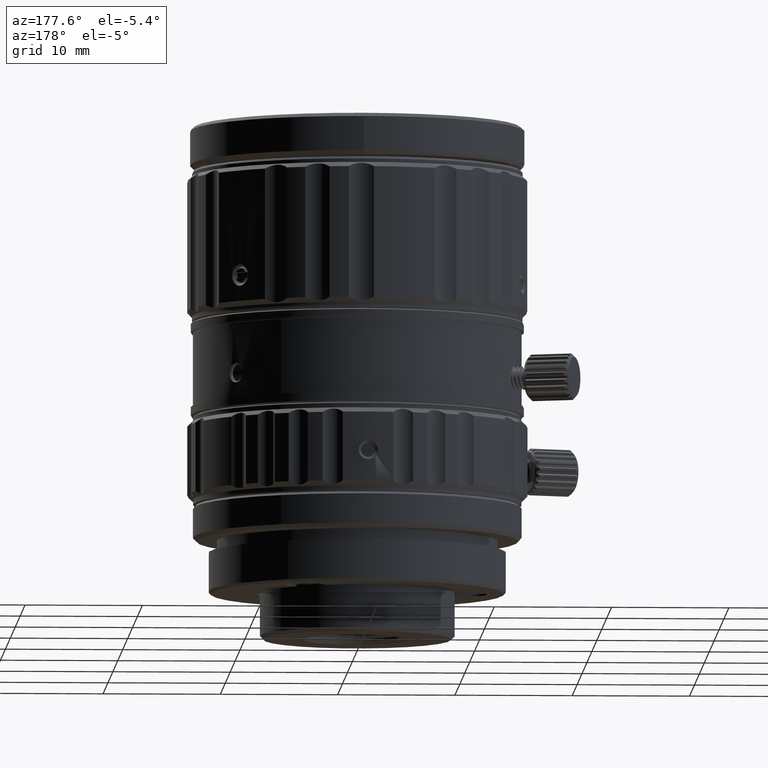
[diagram: clean part render]
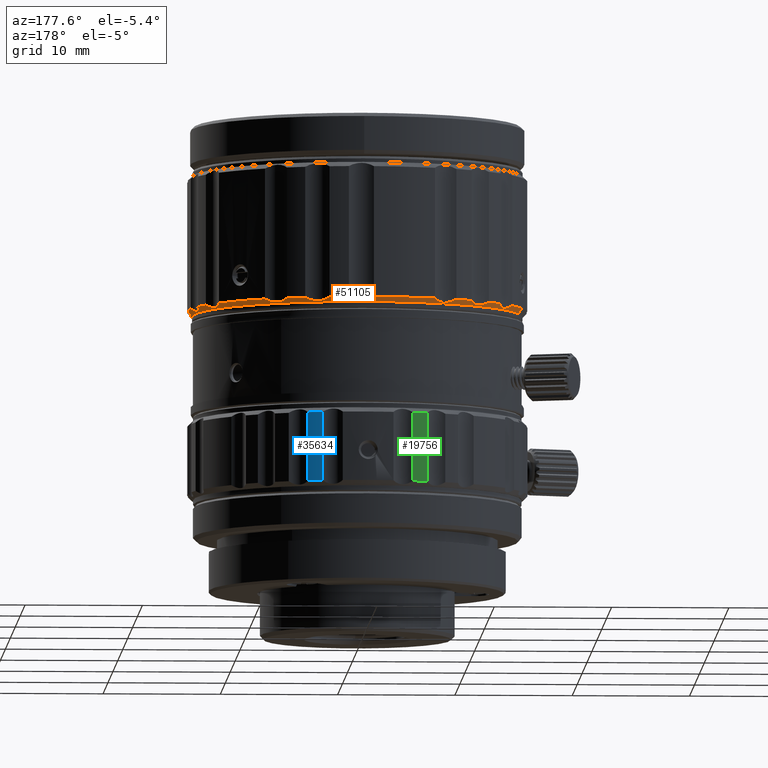
[diagram: same view with three faces highlighted in distinct colors, each labeled with its STEP entity id]
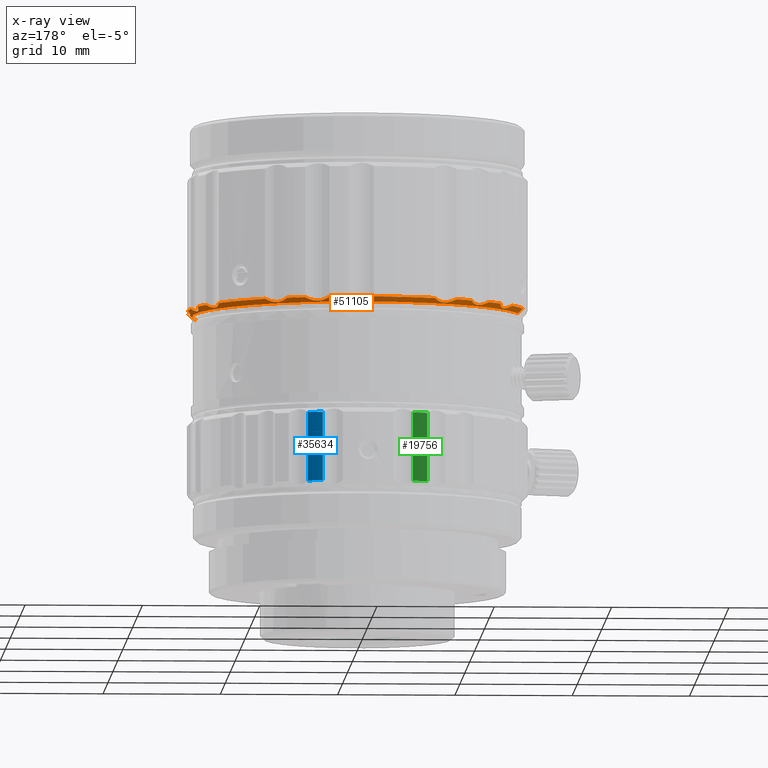
[diagram: x-ray of the same camera — body ghosted, the three highlighted faces saturated]
A machine part, auxiliary view with three faces highlighted in distinct colors.
The next image is the same camera in x-ray (body ghosted, the three faces saturated) — at least one of them is partly hidden behind the body in this view.
Their STEP definitions:

[orange] entity #51105 — the highlighted conical surface has half-angle 45 deg.
#53 = CARTESIAN_POINT ( 'NONE',  ( 12.13364787170920067, 7.874277762082280141, 15.16466047324910171 ) ) ;
#161 = VERTEX_POINT ( 'NONE', #30612 ) ;
#493 = CARTESIAN_POINT ( 'NONE',  ( 6.890869948791209509, 12.49470393294429904, 14.96854781947750013 ) ) ;
#770 = CARTESIAN_POINT ( 'NONE',  ( 7.165137924807210013, 12.26615800877429940, 14.90519358753840073 ) ) ;
#804 = CARTESIAN_POINT ( 'NONE',  ( 13.93829459076052402, -3.996741659247625034, 15.19999998125000040 ) ) ;
#843 = ORIENTED_EDGE ( 'NONE', *, *, #51717, .F. ) ;
#869 = CARTESIAN_POINT ( 'NONE',  ( 13.77598121087919836, 3.434962321787280004, 14.89740607222080016 ) ) ;
#875 = ORIENTED_EDGE ( 'NONE', *, *, #30436, .F. ) ;
#887 = CARTESIAN_POINT ( 'NONE',  ( 13.10762421778919951, 6.117182724668279725, 15.16466312319630028 ) ) ;
#1031 = VERTEX_POINT ( 'NONE', #43483 ) ;
#1050 = CARTESIAN_POINT ( 'NONE',  ( 7.974812044228209551, 11.90098984827429973, 15.02553577718150102 ) ) ;
#1103 = CARTESIAN_POINT ( 'NONE',  ( -0.6337340143753910082, 14.38727565356430027, 15.10087495407030111 ) ) ;
#1112 = ORIENTED_EDGE ( 'NONE', *, *, #14196, .F. ) ;
#1259 = VERTEX_POINT ( 'NONE', #29650 ) ;
#1333 = CARTESIAN_POINT ( 'NONE',  ( 6.644808071088210255, 12.77661321442429809, 15.10087495406510172 ) ) ;
#1381 = CARTESIAN_POINT ( 'NONE',  ( -0.1039023093025909922, 14.22877810675430155, 14.92879609105330019 ) ) ;
#1614 = CARTESIAN_POINT ( 'NONE',  ( 6.535887831521209890, 12.94342189120430042, 15.19999998124989915 ) ) ;
#1827 = VERTEX_POINT ( 'NONE', #42442 ) ;
#1844 = CIRCLE ( 'NONE', #53106, 14.50000000000000000 ) ;
#1854 = CARTESIAN_POINT ( 'NONE',  ( -10.44768126968079969, 9.801965028739278551, 15.02558370914860042 ) ) ;
#2111 = DIRECTION ( 'NONE',  ( 1.000000000000000000, 0.000000000000000000, 0.000000000000000000 ) ) ;
#2513 = VERTEX_POINT ( 'NONE', #18651 ) ;
#2596 = CARTESIAN_POINT ( 'NONE',  ( 3.913225973731209617, 13.64783085157429987, 14.89740607222710089 ) ) ;
#2943 = EDGE_CURVE ( 'NONE', #161, #1827, #34945, .T. ) ;
#3017 = CARTESIAN_POINT ( 'NONE',  ( 2.963178759953210228, 14.19399773272430032, 15.19999998125010165 ) ) ;
#3518 = EDGE_CURVE ( 'NONE', #31279, #52843, #33136, .T. ) ;
#3573 = CARTESIAN_POINT ( 'NONE',  ( 5.008754729101210224, 13.60743826235430021, 15.19999998125010165 ) ) ;
#3593 = CARTESIAN_POINT ( 'NONE',  ( 12.21502039629920056, 7.375296044303279785, 14.96854781947799928 ) ) ;
#4022 = B_SPLINE_CURVE_WITH_KNOTS ( 'NONE', 3,
 ( #38653, #52398, #13140, #30882, #8557, #48376, #12846, #51830, #35191, #4524, #52112, #34349, #26308, #12293, #39218 ),
 .UNSPECIFIED., .F., .F.,
 ( 4, 1, 1, 1, 1, 1, 1, 1, 1, 1, 1, 1, 4 ),
 ( 0.000000000000000000, 0.08333333333333001192, 0.1666666666667000196, 0.2500000000000000000, 0.3333333333333000081, 0.4166666666666999919, 0.5000000000000000000, 0.5833333333333000637, 0.6666666666667000474, 0.7500000000000000000, 0.8333333333333000637, 0.9166666666667000474, 1.000000000000000000 ),
 .UNSPECIFIED. ) ;
#4098 = EDGE_CURVE ( 'NONE', #15422, #12613, #27895, .T. ) ;
#4257 = CARTESIAN_POINT ( 'NONE',  ( 14.21644271443920182, -0.6001084886696159693, 14.92874179533080081 ) ) ;
#4263 = EDGE_CURVE ( 'NONE', #51720, #52863, #15133, .T. ) ;
#4332 = CARTESIAN_POINT ( 'NONE',  ( 14.28876458017920115, 2.466010294445279971, 15.19999998124959895 ) ) ;
#4382 = CARTESIAN_POINT ( 'NONE',  ( -7.742467582474789722, 12.14287920005430088, 15.10087495407160141 ) ) ;
#4524 = CARTESIAN_POINT ( 'NONE',  ( -12.37443445991079827, 7.024407014004280470, 14.92879609104689997 ) ) ;
#4796 = CARTESIAN_POINT ( 'NONE',  ( 8.359949727744210080, 11.84741493109429911, 15.19999998124989915 ) ) ;
#4809 = AXIS2_PLACEMENT_3D ( 'NONE', #46111, #50406, #33777 ) ;
#4901 = CARTESIAN_POINT ( 'NONE',  ( 13.82503590167919860, 3.265869035168280199, 14.90518205045920119 ) ) ;
#4945 = CARTESIAN_POINT ( 'NONE',  ( -6.883405121296790163, 12.41754236597429895, 14.89740607222960023 ) ) ;
#5048 = AXIS2_PLACEMENT_3D ( 'NONE', #31832, #49044, #36435 ) ;
#5217 = CARTESIAN_POINT ( 'NONE',  ( -7.040235480027790871, 12.33827046889430079, 14.90519358754320045 ) ) ;
#5378 = EDGE_CURVE ( 'NONE', #25103, #51720, #28106, .T. ) ;
#5388 = CARTESIAN_POINT ( 'NONE',  ( 0.4235953442322090146, 14.19922833192429934, 14.90518205046720013 ) ) ;
#5618 = ORIENTED_EDGE ( 'NONE', *, *, #7218, .F. ) ;
#5920 = ORIENTED_EDGE ( 'NONE', *, *, #39965, .F. ) ;
#6196 = CARTESIAN_POINT ( 'NONE',  ( -6.588512161007789913, 12.61185478648430092, 14.92874179533600021 ) ) ;
#6373 = CARTESIAN_POINT ( 'NONE',  ( 0.000000000000000000, 0.000000000000000000, 15.19999998125000040 ) ) ;
#6952 = DIRECTION ( 'NONE',  ( 0.000000000000000000, 0.000000000000000000, 1.000000000000000000 ) ) ;
#7183 = CARTESIAN_POINT ( 'NONE',  ( 3.582316838599210129, 13.77083614632429942, 14.92879609105120053 ) ) ;
#7190 = VERTEX_POINT ( 'NONE', #53690 ) ;
#7218 = EDGE_CURVE ( 'NONE', #35762, #28666, #31344, .T. ) ;
#7352 = VERTEX_POINT ( 'NONE', #38497 ) ;
#8445 = AXIS2_PLACEMENT_3D ( 'NONE', #43138, #50883, #21365 ) ;
#8557 = CARTESIAN_POINT ( 'NONE',  ( -11.95019798779079956, 7.797049333037279872, 14.96852953515110052 ) ) ;
#8773 = AXIS2_PLACEMENT_3D ( 'NONE', #55714, #47675, #34774 ) ;
#8841 = CARTESIAN_POINT ( 'NONE',  ( 14.20537340482919930, -0.07211246011522601251, 14.90519358753760137 ) ) ;
#9147 = CARTESIAN_POINT ( 'NONE',  ( 0.2475674834050089756, 14.19560970215430018, 14.89740607222910107 ) ) ;
#9197 = CARTESIAN_POINT ( 'NONE',  ( 14.24423614476920008, 2.516241994275280280, 15.16466312319539966 ) ) ;
#9387 = CARTESIAN_POINT ( 'NONE',  ( 7.312204580857210701, 12.16997488256429882, 14.89740607222490176 ) ) ;
#9392 = ORIENTED_EDGE ( 'NONE', *, *, #54084, .F. ) ;
#9409 = AXIS2_PLACEMENT_3D ( 'NONE', #45365, #14420, #2111 ) ;
#9421 = CONICAL_SURFACE ( 'NONE', #20387, 14.29999999999999716, 0.7853981625000003852 ) ;
#9471 = CARTESIAN_POINT ( 'NONE',  ( 13.74604225191793283, -3.941614188183171663, 14.99999998124999934 ) ) ;
#9660 = CARTESIAN_POINT ( 'NONE',  ( 7.627930553435209760, 12.01174629781429992, 14.92874179533179912 ) ) ;
#9777 = CARTESIAN_POINT ( 'NONE',  ( 12.33827046888920087, 7.040235480026280968, 14.90519358753879864 ) ) ;
#10402 = DIRECTION ( 'NONE',  ( 1.000000000000000000, 0.000000000000000000, 0.000000000000000000 ) ) ;
#10908 = CARTESIAN_POINT ( 'NONE',  ( 4.812485082409209802, 13.57333179277430091, 15.10087547233340111 ) ) ;
#11079 = CARTESIAN_POINT ( 'NONE',  ( 0.000000000000000000, 0.000000000000000000, 15.19999998125000040 ) ) ;
#11114 = ORIENTED_EDGE ( 'NONE', *, *, #56712, .F. ) ;
#11494 = CARTESIAN_POINT ( 'NONE',  ( 3.422201908373210255, 13.85244560074430176, 14.96854781947969926 ) ) ;
#11598 = CARTESIAN_POINT ( 'NONE',  ( -9.348607605323788761, 10.95440023308430000, 15.10087547232730110 ) ) ;
#11676 = CARTESIAN_POINT ( 'NONE',  ( 6.535887831521209890, 12.94342189120430042, 15.19999998124989915 ) ) ;
#12084 = ORIENTED_EDGE ( 'NONE', *, *, #54610, .F. ) ;
#12137 = CIRCLE ( 'NONE', #4809, 14.50000000000000000 ) ;
#12225 = ORIENTED_EDGE ( 'NONE', *, *, #29993, .F. ) ;
#12293 = CARTESIAN_POINT ( 'NONE',  ( -12.88614851427080055, 6.570908416430280674, 15.16466047324840005 ) ) ;
#12567 = CARTESIAN_POINT ( 'NONE',  ( -12.94342189121080011, 6.535887831519279878, 15.19999998125000040 ) ) ;
#12613 = VERTEX_POINT ( 'NONE', #52197 ) ;
#12846 = CARTESIAN_POINT ( 'NONE',  ( -12.08509477746079952, 7.466458494990280137, 14.90518205046010003 ) ) ;
#12940 = CARTESIAN_POINT ( 'NONE',  ( 13.88734868182920046, 3.099825840322280257, 14.92874179532810075 ) ) ;
#13124 = ORIENTED_EDGE ( 'NONE', *, *, #43257, .F. ) ;
#13140 = CARTESIAN_POINT ( 'NONE',  ( -11.86526893382080061, 8.161540403196280380, 15.10087547232710037 ) ) ;
#13148 = CARTESIAN_POINT ( 'NONE',  ( 14.19560970214920026, -0.2475674834055159867, 14.89740607222400115 ) ) ;
#13179 = CARTESIAN_POINT ( 'NONE',  ( 0.9558948965689089139, 14.29396556090429904, 15.02553577718420108 ) ) ;
#13244 = CARTESIAN_POINT ( 'NONE',  ( 12.13195584398919991, 7.941388253923280516, 15.19999998125030061 ) ) ;
#13812 = CARTESIAN_POINT ( 'NONE',  ( -7.941388253925790508, 12.13195584398430071, 15.19999998125030061 ) ) ;
#13954 = CARTESIAN_POINT ( 'NONE',  ( 7.797049333038209795, 11.95019798779430076, 14.96852953515439921 ) ) ;
#14039 = LINE ( 'NONE', #9471, #40132 ) ;
#14067 = CARTESIAN_POINT ( 'NONE',  ( 12.50869012169919969, 6.732769836928279794, 14.90518205046389966 ) ) ;
#14196 = EDGE_CURVE ( 'NONE', #28666, #44598, #21426, .T. ) ;
#14420 = DIRECTION ( 'NONE',  ( 0.000000000000000000, 0.000000000000000000, 1.000000000000000000 ) ) ;
#15133 = B_SPLINE_CURVE_WITH_KNOTS ( 'NONE', 3,
 ( #25227, #16082, #10908, #15495, #32964, #50758, #38429, #2596, #24952, #7183, #11494, #37872, #19800, #28674, #16359 ),
 .UNSPECIFIED., .F., .F.,
 ( 4, 1, 1, 1, 1, 1, 1, 1, 1, 1, 1, 1, 4 ),
 ( 0.000000000000000000, 0.08333333333333001192, 0.1666666666667000196, 0.2500000000000000000, 0.3333333333333000081, 0.4166666666666999919, 0.5000000000000000000, 0.5833333333333000637, 0.6666666666667000474, 0.7500000000000000000, 0.8333333333333000637, 0.9166666666667000474, 1.000000000000000000 ),
 .UNSPECIFIED. ) ;
#15377 = LINE ( 'NONE', #37753, #49578 ) ;
#15422 = VERTEX_POINT ( 'NONE', #26810 ) ;
#15495 = CARTESIAN_POINT ( 'NONE',  ( 4.622874085016209555, 13.55950669101430073, 15.02553577718339994 ) ) ;
#15764 = DIRECTION ( 'NONE',  ( -0.9612616959425918095, 0.2756373558020978609, 0.000000000000000000 ) ) ;
#15960 = ORIENTED_EDGE ( 'NONE', *, *, #31402, .F. ) ;
#16022 = DIRECTION ( 'NONE',  ( 0.000000000000000000, 0.000000000000000000, 1.000000000000000000 ) ) ;
#16082 = CARTESIAN_POINT ( 'NONE',  ( 4.942988583270209624, 13.59399135601429975, 15.16466312319619902 ) ) ;
#16359 = CARTESIAN_POINT ( 'NONE',  ( 2.963178759953210228, 14.19399773272430032, 15.19999998125010165 ) ) ;
#16588 = CARTESIAN_POINT ( 'NONE',  ( 14.31866221424919949, 0.4565903326921840200, 15.02558370915149943 ) ) ;
#17245 = CARTESIAN_POINT ( 'NONE',  ( 13.70767074896920157, 3.962509010843280777, 14.96854781947399893 ) ) ;
#17705 = CARTESIAN_POINT ( 'NONE',  ( 0.000000000000000000, 0.000000000000000000, 15.19999998125000040 ) ) ;
#17757 = CARTESIAN_POINT ( 'NONE',  ( 1.316221373036210007, 14.44013716337430075, 15.19999998124970020 ) ) ;
#17849 = CARTESIAN_POINT ( 'NONE',  ( -7.204371092744789706, 12.27053215061429903, 14.92879609105379934 ) ) ;
#17976 = DIRECTION ( 'NONE',  ( 0.000000000000000000, 0.000000000000000000, 1.000000000000000000 ) ) ;
#18027 = CARTESIAN_POINT ( 'NONE',  ( 1.256176469740210022, 14.41012691819429925, 15.16466312319609955 ) ) ;
#18072 = CARTESIAN_POINT ( 'NONE',  ( 13.71705235335920037, 3.783040686532280095, 14.92879609104529948 ) ) ;
#18651 = CARTESIAN_POINT ( 'NONE',  ( -13.55378991279054901, 3.886486716809581576, 14.79999998125000005 ) ) ;
#19335 = CARTESIAN_POINT ( 'NONE',  ( -10.62145779647079991, 9.725222558394280625, 15.10087495406209968 ) ) ;
#19645 = CARTESIAN_POINT ( 'NONE',  ( -11.84741493110079880, 8.359949727741280867, 15.19999998124989915 ) ) ;
#19800 = CARTESIAN_POINT ( 'NONE',  ( 3.111560894797209986, 14.06106355616430115, 15.10087495406830094 ) ) ;
#20125 = EDGE_CURVE ( 'NONE', #2513, #7190, #15377, .T. ) ;
#20160 = VERTEX_POINT ( 'NONE', #35606 ) ;
#20387 = AXIS2_PLACEMENT_3D ( 'NONE', #22160, #43934, #27002 ) ;
#20488 = CARTESIAN_POINT ( 'NONE',  ( -9.740843500726791504, 10.33989778150430006, 14.90518205045929889 ) ) ;
#20788 = CIRCLE ( 'NONE', #28997, 14.50000000000000000 ) ;
#21282 = B_SPLINE_CURVE_WITH_KNOTS ( 'NONE', 3,
 ( #55159, #50003, #11598, #29064, #24770, #42279, #20488, #23626, #37973, #55436, #41117, #1854, #19335, #55722, #39368 ),
 .UNSPECIFIED., .F., .F.,
 ( 4, 1, 1, 1, 1, 1, 1, 1, 1, 1, 1, 1, 4 ),
 ( 0.000000000000000000, 0.08333333333333001192, 0.1666666666667000196, 0.2500000000000000000, 0.3333333333333000081, 0.4166666666666999919, 0.5000000000000000000, 0.5833333333333000637, 0.6666666666667000474, 0.7500000000000000000, 0.8333333333333000637, 0.9166666666667000474, 1.000000000000000000 ),
 .UNSPECIFIED. ) ;
#21316 = CARTESIAN_POINT ( 'NONE',  ( -6.319153516672789905, 12.85688474484429911, 15.02553577718479971 ) ) ;
#21365 = DIRECTION ( 'NONE',  ( 1.000000000000000000, 0.000000000000000000, 0.000000000000000000 ) ) ;
#21426 = B_SPLINE_CURVE_WITH_KNOTS ( 'NONE', 3,
 ( #46979, #38378, #38949, #51839, #26038, #4257, #34914, #13148, #8841, #26316, #21744, #16588, #39499, #39227, #56703 ),
 .UNSPECIFIED., .F., .F.,
 ( 4, 1, 1, 1, 1, 1, 1, 1, 1, 1, 1, 1, 4 ),
 ( 0.000000000000000000, 0.08333333333333001192, 0.1666666666667000196, 0.2500000000000000000, 0.3333333333333000081, 0.4166666666666999919, 0.5000000000000000000, 0.5833333333333000637, 0.6666666666667000474, 0.7500000000000000000, 0.8333333333333000637, 0.9166666666667000474, 1.000000000000000000 ),
 .UNSPECIFIED. ) ;
#21744 = CARTESIAN_POINT ( 'NONE',  ( 14.26616599308920108, 0.2796835366482839924, 14.96854781947729940 ) ) ;
#22146 = CARTESIAN_POINT ( 'NONE',  ( -7.554749934355790231, 12.17203005940429961, 15.02558370915559927 ) ) ;
#22160 = CARTESIAN_POINT ( 'NONE',  ( 0.000000000000000000, 0.000000000000000000, 14.99999998124999934 ) ) ;
#22335 = EDGE_CURVE ( 'NONE', #37554, #15422, #26118, .T. ) ;
#22362 = ORIENTED_EDGE ( 'NONE', *, *, #27067, .F. ) ;
#22377 = CARTESIAN_POINT ( 'NONE',  ( 13.73301869125919872, 4.335840997771279959, 15.10087495406290081 ) ) ;
#22542 = CARTESIAN_POINT ( 'NONE',  ( 7.024407014008210659, 12.37443445990429858, 14.92879609104899963 ) ) ;
#22642 = CARTESIAN_POINT ( 'NONE',  ( 14.16109268773919894, 2.618931559679280152, 15.10087547232819993 ) ) ;
#22694 = CARTESIAN_POINT ( 'NONE',  ( -7.375296044302789511, 12.21502039630430048, 14.96854781948229984 ) ) ;
#22865 = CARTESIAN_POINT ( 'NONE',  ( -0.2796835366449910154, 14.26616599309430100, 14.96854781948159996 ) ) ;
#23234 = CARTESIAN_POINT ( 'NONE',  ( 13.55378991273027367, -3.886486717019769888, 14.79999998125000005 ) ) ;
#23392 = CARTESIAN_POINT ( 'NONE',  ( 7.466458494993210238, 12.08509477746430072, 14.90518205046329925 ) ) ;
#23626 = CARTESIAN_POINT ( 'NONE',  ( -9.862755237147789344, 10.21286852978430026, 14.89740607222090141 ) ) ;
#24770 = CARTESIAN_POINT ( 'NONE',  ( -9.524980002677791546, 10.62431015161430103, 14.96852953515080031 ) ) ;
#24886 = ORIENTED_EDGE ( 'NONE', *, *, #3518, .F. ) ;
#24952 = CARTESIAN_POINT ( 'NONE',  ( 3.746276467588210313, 13.70267296574430027, 14.90519358754059986 ) ) ;
#25103 = VERTEX_POINT ( 'NONE', #11676 ) ;
#25227 = CARTESIAN_POINT ( 'NONE',  ( 5.008754729101210224, 13.60743826235430021, 15.19999998125010165 ) ) ;
#25323 = CIRCLE ( 'NONE', #32631, 14.50000000000000000 ) ;
#25349 = CARTESIAN_POINT ( 'NONE',  ( 12.72754179086919990, 6.450650371162280017, 14.96852953515560003 ) ) ;
#25640 = B_SPLINE_CURVE_WITH_KNOTS ( 'NONE', 3,
 ( #4332, #9197, #22642, #44165, #56501, #12940, #4901, #869, #47905, #18072, #17245, #48737, #22377, #35553, #53028 ),
 .UNSPECIFIED., .F., .F.,
 ( 4, 1, 1, 1, 1, 1, 1, 1, 1, 1, 1, 1, 4 ),
 ( 0.000000000000000000, 0.08333333333333001192, 0.1666666666667000196, 0.2500000000000000000, 0.3333333333333000081, 0.4166666666666999919, 0.5000000000000000000, 0.5833333333333000637, 0.6666666666667000474, 0.7500000000000000000, 0.8333333333333000637, 0.9166666666667000474, 1.000000000000000000 ),
 .UNSPECIFIED. ) ;
#26038 = CARTESIAN_POINT ( 'NONE',  ( 14.24769970419919929, -0.7773438030752160000, 14.96852953515349860 ) ) ;
#26118 = B_SPLINE_CURVE_WITH_KNOTS ( 'NONE', 3,
 ( #47148, #887, #35298, #52782, #25349, #42859, #14067, #31546, #9777, #44724, #3593, #40434, #39319, #53, #13244 ),
 .UNSPECIFIED., .F., .F.,
 ( 4, 1, 1, 1, 1, 1, 1, 1, 1, 1, 1, 1, 4 ),
 ( 0.000000000000000000, 0.08333333333333001192, 0.1666666666667000196, 0.2500000000000000000, 0.3333333333333000081, 0.4166666666666999919, 0.5000000000000000000, 0.5833333333333000637, 0.6666666666667000474, 0.7500000000000000000, 0.8333333333333000637, 0.9166666666667000474, 1.000000000000000000 ),
 .UNSPECIFIED. ) ;
#26308 = CARTESIAN_POINT ( 'NONE',  ( -12.77661321443079956, 6.644808071083279977, 15.10087495406579983 ) ) ;
#26316 = CARTESIAN_POINT ( 'NONE',  ( 14.22877810674919985, 0.1039023093041839957, 14.92879609104850047 ) ) ;
#26810 = CARTESIAN_POINT ( 'NONE',  ( 12.13195584398919991, 7.941388253923280516, 15.19999998125030061 ) ) ;
#26853 = CARTESIAN_POINT ( 'NONE',  ( 6.570908416432209798, 12.88614851427429997, 15.16466047324870026 ) ) ;
#26935 = DIRECTION ( 'NONE',  ( 0.6797146630828566627, -0.1949050432716163961, 0.7071067818211390632 ) ) ;
#27002 = DIRECTION ( 'NONE',  ( 0.9612616959383171178, -0.2756373558170050475, 0.000000000000000000 ) ) ;
#27067 = EDGE_CURVE ( 'NONE', #52863, #161, #1844, .T. ) ;
#27895 = CIRCLE ( 'NONE', #5048, 14.50000000000000000 ) ;
#27964 = ORIENTED_EDGE ( 'NONE', *, *, #22335, .F. ) ;
#28106 = CIRCLE ( 'NONE', #56502, 14.50000000000000000 ) ;
#28314 = CARTESIAN_POINT ( 'NONE',  ( 0.000000000000000000, 0.000000000000000000, 15.19999998125000040 ) ) ;
#28319 = CARTESIAN_POINT ( 'NONE',  ( 0.000000000000000000, 0.000000000000000000, 15.19999998125000040 ) ) ;
#28371 = CARTESIAN_POINT ( 'NONE',  ( 0.000000000000000000, 0.000000000000000000, 15.19999998125000040 ) ) ;
#28666 = VERTEX_POINT ( 'NONE', #35572 ) ;
#28674 = CARTESIAN_POINT ( 'NONE',  ( 3.011829488098209939, 14.14773989313430036, 15.16466047324889921 ) ) ;
#28823 = CARTESIAN_POINT ( 'NONE',  ( -6.080187435637789406, 13.16363630413430030, 15.19999998125030061 ) ) ;
#28922 = DIRECTION ( 'NONE',  ( 0.000000000000000000, 0.000000000000000000, -1.000000000000000000 ) ) ;
#28997 = AXIS2_PLACEMENT_3D ( 'NONE', #17705, #17976, #35180 ) ;
#29064 = CARTESIAN_POINT ( 'NONE',  ( -9.431440214685789414, 10.78327974162430003, 15.02553577717870148 ) ) ;
#29650 = CARTESIAN_POINT ( 'NONE',  ( -9.280009851068788507, 11.14142796790430090, 15.19999998124959895 ) ) ;
#29993 = EDGE_CURVE ( 'NONE', #44598, #7352, #43839, .T. ) ;
#30000 = EDGE_CURVE ( 'NONE', #52843, #46002, #4022, .T. ) ;
#30436 = EDGE_CURVE ( 'NONE', #31610, #20160, #50382, .T. ) ;
#30612 = CARTESIAN_POINT ( 'NONE',  ( 1.316221373036210007, 14.44013716337430075, 15.19999998124970020 ) ) ;
#30882 = CARTESIAN_POINT ( 'NONE',  ( -11.90098984827080209, 7.974812044228278829, 15.02553577717890043 ) ) ;
#30920 = CARTESIAN_POINT ( 'NONE',  ( 0.7773438030719089786, 14.24769970420429921, 14.96852953515779916 ) ) ;
#30927 = EDGE_CURVE ( 'NONE', #46002, #7190, #53544, .T. ) ;
#31279 = VERTEX_POINT ( 'NONE', #41108 ) ;
#31344 = CIRCLE ( 'NONE', #9409, 14.50000000000000000 ) ;
#31402 = EDGE_CURVE ( 'NONE', #20160, #1259, #48123, .T. ) ;
#31546 = CARTESIAN_POINT ( 'NONE',  ( 12.41754236597919991, 6.883405121294280171, 14.89740607222540092 ) ) ;
#31610 = VERTEX_POINT ( 'NONE', #43755 ) ;
#31832 = CARTESIAN_POINT ( 'NONE',  ( 0.000000000000000000, 0.000000000000000000, 15.19999998125000040 ) ) ;
#31954 = ORIENTED_EDGE ( 'NONE', *, *, #52436, .F. ) ;
#32030 = ORIENTED_EDGE ( 'NONE', *, *, #30927, .F. ) ;
#32631 = AXIS2_PLACEMENT_3D ( 'NONE', #28371, #37003, #45864 ) ;
#32964 = CARTESIAN_POINT ( 'NONE',  ( 4.438432487644210056, 13.56102972867430090, 14.96852953515639939 ) ) ;
#33136 = CIRCLE ( 'NONE', #8445, 14.50000000000000000 ) ;
#33521 = ORIENTED_EDGE ( 'NONE', *, *, #20125, .T. ) ;
#33777 = DIRECTION ( 'NONE',  ( 1.000000000000000000, 0.000000000000000000, 0.000000000000000000 ) ) ;
#34349 = CARTESIAN_POINT ( 'NONE',  ( -12.62862039209079867, 6.763912279887280832, 15.02558370915049935 ) ) ;
#34774 = DIRECTION ( 'NONE',  ( 1.000000000000000000, 0.000000000000000000, 0.000000000000000000 ) ) ;
#34914 = CARTESIAN_POINT ( 'NONE',  ( 14.19922833191919942, -0.4235953442339160380, 14.90518205046230094 ) ) ;
#34945 = B_SPLINE_CURVE_WITH_KNOTS ( 'NONE', 3,
 ( #17757, #18027, #34956, #13179, #30920, #48413, #5388, #9147, #43833, #1381, #22865, #52444, #1103, #44927, #44117 ),
 .UNSPECIFIED., .F., .F.,
 ( 4, 1, 1, 1, 1, 1, 1, 1, 1, 1, 1, 1, 4 ),
 ( 0.000000000000000000, 0.08333333333333001192, 0.1666666666667000196, 0.2500000000000000000, 0.3333333333333000081, 0.4166666666666999919, 0.5000000000000000000, 0.5833333333333000637, 0.6666666666667000474, 0.7500000000000000000, 0.8333333333333000637, 0.9166666666667000474, 1.000000000000000000 ),
 .UNSPECIFIED. ) ;
#34956 = CARTESIAN_POINT ( 'NONE',  ( 1.135466856260209934, 14.35639452102429914, 15.10087547233399974 ) ) ;
#35180 = DIRECTION ( 'NONE',  ( 1.000000000000000000, 0.000000000000000000, 0.000000000000000000 ) ) ;
#35191 = CARTESIAN_POINT ( 'NONE',  ( -12.26615800877079998, 7.165137924804279912, 14.90519358753580015 ) ) ;
#35275 = CARTESIAN_POINT ( 'NONE',  ( 14.47727608544920130, 0.8114660472209840325, 15.19999998124989915 ) ) ;
#35298 = CARTESIAN_POINT ( 'NONE',  ( 13.00073579009920088, 6.194854117829279971, 15.10087547233369953 ) ) ;
#35553 = CARTESIAN_POINT ( 'NONE',  ( 13.75821689762919853, 4.465549098011279305, 15.16466047324809985 ) ) ;
#35572 = CARTESIAN_POINT ( 'NONE',  ( 14.44013716337919995, -1.316221373035719955, 15.19999998124970020 ) ) ;
#35606 = CARTESIAN_POINT ( 'NONE',  ( -7.941388253925790508, 12.13195584398430071, 15.19999998125030061 ) ) ;
#35762 = VERTEX_POINT ( 'NONE', #804 ) ;
#36022 = CARTESIAN_POINT ( 'NONE',  ( 6.763912279891210133, 12.62862039208429898, 15.02558370915139996 ) ) ;
#36160 = AXIS2_PLACEMENT_3D ( 'NONE', #11079, #54924, #46621 ) ;
#36435 = DIRECTION ( 'NONE',  ( 1.000000000000000000, 0.000000000000000000, 0.000000000000000000 ) ) ;
#36725 = VERTEX_POINT ( 'NONE', #23234 ) ;
#37003 = DIRECTION ( 'NONE',  ( 0.000000000000000000, 0.000000000000000000, 1.000000000000000000 ) ) ;
#37554 = VERTEX_POINT ( 'NONE', #39631 ) ;
#37753 = CARTESIAN_POINT ( 'NONE',  ( -13.74604225191793283, 3.941614188183173439, 14.99999998124999934 ) ) ;
#37872 = CARTESIAN_POINT ( 'NONE',  ( 3.264910087057209864, 13.94893990456430011, 15.02558370915340014 ) ) ;
#37973 = CARTESIAN_POINT ( 'NONE',  ( -9.993724654284790176, 10.09570707339429951, 14.90519358753440038 ) ) ;
#38362 = ORIENTED_EDGE ( 'NONE', *, *, #42408, .F. ) ;
#38378 = CARTESIAN_POINT ( 'NONE',  ( 14.41012691819920022, -1.256176469739719970, 15.16466312319579934 ) ) ;
#38429 = CARTESIAN_POINT ( 'NONE',  ( 4.084192400952209034, 13.60576681667429888, 14.90518205046540068 ) ) ;
#38497 = CARTESIAN_POINT ( 'NONE',  ( 14.28876458017920115, 2.466010294445279971, 15.19999998124959895 ) ) ;
#38653 = CARTESIAN_POINT ( 'NONE',  ( -11.84741493110079880, 8.359949727741280867, 15.19999998124989915 ) ) ;
#38800 = CARTESIAN_POINT ( 'NONE',  ( -6.450650371166789299, 12.72754179087429982, 14.96852953515829832 ) ) ;
#38949 = CARTESIAN_POINT ( 'NONE',  ( 14.35639452102919833, -1.135466856267720148, 15.10087547233020011 ) ) ;
#39218 = CARTESIAN_POINT ( 'NONE',  ( -12.94342189121080011, 6.535887831519279878, 15.19999998125000040 ) ) ;
#39227 = CARTESIAN_POINT ( 'NONE',  ( 14.44518617851919906, 0.7525006425657838616, 15.16466047324860078 ) ) ;
#39319 = CARTESIAN_POINT ( 'NONE',  ( 12.14287920004919918, 7.742467582478279375, 15.10087495406640024 ) ) ;
#39368 = CARTESIAN_POINT ( 'NONE',  ( -10.81077323782079880, 9.663186948433279966, 15.19999998124959895 ) ) ;
#39397 = EDGE_LOOP ( 'NONE', ( #31954, #33521, #32030, #39482, #24886, #843, #15960, #875, #13124, #44954, #22362, #52095, #49710, #38362, #50265, #27964, #9392, #12084, #5920, #12225, #1112, #5618, #11114 ) ) ;
#39482 = ORIENTED_EDGE ( 'NONE', *, *, #30000, .F. ) ;
#39499 = CARTESIAN_POINT ( 'NONE',  ( 14.38727565355920035, 0.6337340143822840499, 15.10087495406640024 ) ) ;
#39631 = CARTESIAN_POINT ( 'NONE',  ( 13.16363630413919950, 6.080187435636279503, 15.19999998125030061 ) ) ;
#39965 = EDGE_CURVE ( 'NONE', #7352, #1031, #25640, .T. ) ;
#40132 = VECTOR ( 'NONE', #26935, 1000.000000000000000 ) ;
#40434 = CARTESIAN_POINT ( 'NONE',  ( 12.17203005939919969, 7.554749934355280416, 15.02558370915200037 ) ) ;
#40606 = CARTESIAN_POINT ( 'NONE',  ( 8.292944193532209241, 11.85144774804429879, 15.16466312319609955 ) ) ;
#41108 = CARTESIAN_POINT ( 'NONE',  ( -10.81077323782079880, 9.663186948433279966, 15.19999998124959895 ) ) ;
#41117 = CARTESIAN_POINT ( 'NONE',  ( -10.28546884060080124, 9.889936589896279884, 14.96854781947399893 ) ) ;
#41539 = DIRECTION ( 'NONE',  ( 1.000000000000000000, 0.000000000000000000, 0.000000000000000000 ) ) ;
#41761 = DIRECTION ( 'NONE',  ( -0.6797146630828566627, 0.1949050432716164516, 0.7071067818211390632 ) ) ;
#42279 = CARTESIAN_POINT ( 'NONE',  ( -9.628202265939789228, 10.47688382951429986, 14.92874179532799950 ) ) ;
#42408 = EDGE_CURVE ( 'NONE', #12613, #25103, #44003, .T. ) ;
#42442 = CARTESIAN_POINT ( 'NONE',  ( -0.8114660472211909781, 14.47727608544430034, 15.19999998124989915 ) ) ;
#42859 = CARTESIAN_POINT ( 'NONE',  ( 12.61185478648920011, 6.588512161004279832, 14.92874179533269974 ) ) ;
#43138 = CARTESIAN_POINT ( 'NONE',  ( 0.000000000000000000, 0.000000000000000000, 15.19999998125000040 ) ) ;
#43257 = EDGE_CURVE ( 'NONE', #1827, #31610, #12137, .T. ) ;
#43483 = CARTESIAN_POINT ( 'NONE',  ( 13.77395199776920087, 4.530810784294279969, 15.19999998124959895 ) ) ;
#43755 = CARTESIAN_POINT ( 'NONE',  ( -6.080187435637789406, 13.16363630413430030, 15.19999998125030061 ) ) ;
#43833 = CARTESIAN_POINT ( 'NONE',  ( 0.07211246011610900064, 14.20537340483429922, 14.90519358754270129 ) ) ;
#43839 = CIRCLE ( 'NONE', #51155, 14.50000000000000000 ) ;
#43934 = DIRECTION ( 'NONE',  ( -1.150809682885772011E-17, 3.299893664540600058E-18, 1.000000000000000000 ) ) ;
#44003 = B_SPLINE_CURVE_WITH_KNOTS ( 'NONE', 3,
 ( #4796, #40606, #44879, #1050, #13954, #9660, #23392, #9387, #770, #22542, #493, #36022, #1333, #26853, #1614 ),
 .UNSPECIFIED., .F., .F.,
 ( 4, 1, 1, 1, 1, 1, 1, 1, 1, 1, 1, 1, 4 ),
 ( 0.000000000000000000, 0.08333333333333001192, 0.1666666666667000196, 0.2500000000000000000, 0.3333333333333000081, 0.4166666666666999919, 0.5000000000000000000, 0.5833333333333000637, 0.6666666666667000474, 0.7500000000000000000, 0.8333333333333000637, 0.9166666666667000474, 1.000000000000000000 ),
 .UNSPECIFIED. ) ;
#44117 = CARTESIAN_POINT ( 'NONE',  ( -0.8114660472211909781, 14.47727608544430034, 15.19999998124989915 ) ) ;
#44165 = CARTESIAN_POINT ( 'NONE',  ( 14.05431429969920032, 2.776226949380280029, 15.02553577717890043 ) ) ;
#44216 = CARTESIAN_POINT ( 'NONE',  ( -6.732769836930789786, 12.50869012169430050, 14.90518205046770106 ) ) ;
#44481 = CARTESIAN_POINT ( 'NONE',  ( -7.874277762084790133, 12.13364787170429970, 15.16466047324919941 ) ) ;
#44494 = FACE_OUTER_BOUND ( 'NONE', #39397, .T. ) ;
#44598 = VERTEX_POINT ( 'NONE', #35275 ) ;
#44724 = CARTESIAN_POINT ( 'NONE',  ( 12.27053215060919911, 7.204371092743280691, 14.92879609104939931 ) ) ;
#44817 = CIRCLE ( 'NONE', #52168, 14.10000000000000497 ) ;
#44879 = CARTESIAN_POINT ( 'NONE',  ( 8.161540403194210924, 11.86526893382430003, 15.10087547233100125 ) ) ;
#44927 = CARTESIAN_POINT ( 'NONE',  ( -0.7525006425662910114, 14.44518617851430164, 15.16466047324889921 ) ) ;
#44954 = ORIENTED_EDGE ( 'NONE', *, *, #2943, .F. ) ;
#45365 = CARTESIAN_POINT ( 'NONE',  ( 0.000000000000000000, 0.000000000000000000, 15.19999998125000040 ) ) ;
#45454 = CARTESIAN_POINT ( 'NONE',  ( -6.117182724668789540, 13.10762421778429854, 15.16466312319659870 ) ) ;
#45810 = DIRECTION ( 'NONE',  ( 0.000000000000000000, 0.000000000000000000, 1.000000000000000000 ) ) ;
#45864 = DIRECTION ( 'NONE',  ( 1.000000000000000000, 0.000000000000000000, 0.000000000000000000 ) ) ;
#46002 = VERTEX_POINT ( 'NONE', #12567 ) ;
#46111 = CARTESIAN_POINT ( 'NONE',  ( 0.000000000000000000, 0.000000000000000000, 15.19999998125000040 ) ) ;
#46323 = CARTESIAN_POINT ( 'NONE',  ( -6.194854117834790230, 13.00073579009429992, 15.10087547233470140 ) ) ;
#46423 = CARTESIAN_POINT ( 'NONE',  ( 0.000000000000000000, 0.000000000000000000, 14.79999998125000005 ) ) ;
#46621 = DIRECTION ( 'NONE',  ( 1.000000000000000000, 0.000000000000000000, 0.000000000000000000 ) ) ;
#46979 = CARTESIAN_POINT ( 'NONE',  ( 14.44013716337919995, -1.316221373035719955, 15.19999998124970020 ) ) ;
#47148 = CARTESIAN_POINT ( 'NONE',  ( 13.16363630413919950, 6.080187435636279503, 15.19999998125030061 ) ) ;
#47675 = DIRECTION ( 'NONE',  ( 0.000000000000000000, 0.000000000000000000, 1.000000000000000000 ) ) ;
#47828 = CARTESIAN_POINT ( 'NONE',  ( 13.68511379795702609, 4.792458694341168446, 15.19999998125000040 ) ) ;
#47905 = CARTESIAN_POINT ( 'NONE',  ( 13.74000112186919864, 3.606965892340280089, 14.90519358753440038 ) ) ;
#48123 = CIRCLE ( 'NONE', #8773, 14.50000000000000000 ) ;
#48376 = CARTESIAN_POINT ( 'NONE',  ( -12.01174629781080050, 7.627930553433279748, 14.92874179532859991 ) ) ;
#48413 = CARTESIAN_POINT ( 'NONE',  ( 0.6001084886673090368, 14.21644271444430174, 14.92874179533549928 ) ) ;
#48422 = VERTEX_POINT ( 'NONE', #47828 ) ;
#48737 = CARTESIAN_POINT ( 'NONE',  ( 13.71259135673919793, 4.146974875819280371, 15.02558370914869812 ) ) ;
#49044 = DIRECTION ( 'NONE',  ( 0.000000000000000000, 0.000000000000000000, 1.000000000000000000 ) ) ;
#49578 = VECTOR ( 'NONE', #41761, 1000.000000000000000 ) ;
#49710 = ORIENTED_EDGE ( 'NONE', *, *, #5378, .F. ) ;
#50003 = CARTESIAN_POINT ( 'NONE',  ( -9.301247561492790084, 11.07774936173430014, 15.16466312319549914 ) ) ;
#50265 = ORIENTED_EDGE ( 'NONE', *, *, #4098, .F. ) ;
#50382 = B_SPLINE_CURVE_WITH_KNOTS ( 'NONE', 3,
 ( #28823, #45454, #46323, #21316, #38800, #6196, #44216, #4945, #5217, #17849, #22694, #22146, #4382, #44481, #13812 ),
 .UNSPECIFIED., .F., .F.,
 ( 4, 1, 1, 1, 1, 1, 1, 1, 1, 1, 1, 1, 4 ),
 ( 0.000000000000000000, 0.08333333333333001192, 0.1666666666667000196, 0.2500000000000000000, 0.3333333333333000081, 0.4166666666666999919, 0.5000000000000000000, 0.5833333333333000637, 0.6666666666667000474, 0.7500000000000000000, 0.8333333333333000637, 0.9166666666667000474, 1.000000000000000000 ),
 .UNSPECIFIED. ) ;
#50406 = DIRECTION ( 'NONE',  ( 0.000000000000000000, 0.000000000000000000, 1.000000000000000000 ) ) ;
#50758 = CARTESIAN_POINT ( 'NONE',  ( 4.259146415887210324, 13.57670966984430017, 14.92874179533390055 ) ) ;
#50883 = DIRECTION ( 'NONE',  ( 0.000000000000000000, 0.000000000000000000, 1.000000000000000000 ) ) ;
#50973 = DIRECTION ( 'NONE',  ( 1.000000000000000000, 0.000000000000000000, 0.000000000000000000 ) ) ;
#51105 = ADVANCED_FACE ( 'NONE', ( #44494 ), #9421, .T. ) ;
#51155 = AXIS2_PLACEMENT_3D ( 'NONE', #28314, #16022, #50973 ) ;
#51717 = EDGE_CURVE ( 'NONE', #1259, #31279, #21282, .T. ) ;
#51720 = VERTEX_POINT ( 'NONE', #3573 ) ;
#51830 = CARTESIAN_POINT ( 'NONE',  ( -12.16997488257080029, 7.312204580854280600, 14.89740607222200097 ) ) ;
#51839 = CARTESIAN_POINT ( 'NONE',  ( 14.29396556089920090, -0.9558948965722159352, 15.02553577718079936 ) ) ;
#52095 = ORIENTED_EDGE ( 'NONE', *, *, #4263, .F. ) ;
#52112 = CARTESIAN_POINT ( 'NONE',  ( -12.49470393295079873, 6.890869948787279320, 14.96854781947599911 ) ) ;
#52168 = AXIS2_PLACEMENT_3D ( 'NONE', #46423, #28922, #15764 ) ;
#52197 = CARTESIAN_POINT ( 'NONE',  ( 8.359949727744210080, 11.84741493109429911, 15.19999998124989915 ) ) ;
#52398 = CARTESIAN_POINT ( 'NONE',  ( -11.85144774804080114, 8.292944193528279939, 15.16466312319600007 ) ) ;
#52436 = EDGE_CURVE ( 'NONE', #2513, #36725, #44817, .T. ) ;
#52444 = CARTESIAN_POINT ( 'NONE',  ( -0.4565903326892910563, 14.31866221424429853, 15.02558370915489938 ) ) ;
#52782 = CARTESIAN_POINT ( 'NONE',  ( 12.85688474484919830, 6.319153516669279824, 15.02553577718290079 ) ) ;
#52843 = VERTEX_POINT ( 'NONE', #19645 ) ;
#52863 = VERTEX_POINT ( 'NONE', #3017 ) ;
#53028 = CARTESIAN_POINT ( 'NONE',  ( 13.77395199776920087, 4.530810784294279969, 15.19999998124959895 ) ) ;
#53106 = AXIS2_PLACEMENT_3D ( 'NONE', #6373, #6952, #10402 ) ;
#53544 = CIRCLE ( 'NONE', #36160, 14.50000000000000000 ) ;
#53690 = CARTESIAN_POINT ( 'NONE',  ( -13.93829459076052402, 3.996741659247626810, 15.19999998125000040 ) ) ;
#54084 = EDGE_CURVE ( 'NONE', #48422, #37554, #25323, .T. ) ;
#54610 = EDGE_CURVE ( 'NONE', #1031, #48422, #20788, .T. ) ;
#54924 = DIRECTION ( 'NONE',  ( 0.000000000000000000, 0.000000000000000000, 1.000000000000000000 ) ) ;
#55159 = CARTESIAN_POINT ( 'NONE',  ( -9.280009851068788507, 11.14142796790430090, 15.19999998124959895 ) ) ;
#55436 = CARTESIAN_POINT ( 'NONE',  ( -10.13473551477079937, 9.987795459789280628, 14.92879609104529948 ) ) ;
#55714 = CARTESIAN_POINT ( 'NONE',  ( 0.000000000000000000, 0.000000000000000000, 15.19999998125000040 ) ) ;
#55722 = CARTESIAN_POINT ( 'NONE',  ( -10.74638740954079985, 9.682190795122279425, 15.16466047324820110 ) ) ;
#56502 = AXIS2_PLACEMENT_3D ( 'NONE', #28319, #45810, #41539 ) ;
#56501 = CARTESIAN_POINT ( 'NONE',  ( 13.96341249031920029, 2.936719577050280083, 14.96852953515099927 ) ) ;
#56703 = CARTESIAN_POINT ( 'NONE',  ( 14.47727608544920130, 0.8114660472209840325, 15.19999998124989915 ) ) ;
#56712 = EDGE_CURVE ( 'NONE', #36725, #35762, #14039, .T. ) ;

[blue] entity #35634 — the highlighted cylindrical surface (partial cylindrical patch) has radius 14.5 mm, axis along (0, 0, 1).
#405 = VERTEX_POINT ( 'NONE', #13292 ) ;
#1944 = ORIENTED_EDGE ( 'NONE', *, *, #10687, .F. ) ;
#2243 = ORIENTED_EDGE ( 'NONE', *, *, #25138, .T. ) ;
#3087 = DIRECTION ( 'NONE',  ( 0.000000000000000000, 0.000000000000000000, 1.000000000000000000 ) ) ;
#3252 = VERTEX_POINT ( 'NONE', #47123 ) ;
#4150 = EDGE_CURVE ( 'NONE', #30109, #3252, #35867, .T. ) ;
#6070 = CARTESIAN_POINT ( 'NONE',  ( 0.000000000000000000, 0.000000000000000000, -3.672500009390000208 ) ) ;
#7451 = AXIS2_PLACEMENT_3D ( 'NONE', #31591, #40488, #22990 ) ;
#10662 = DIRECTION ( 'NONE',  ( 0.9438009515832430640, 0.3305143927131840020, 0.000000000000000000 ) ) ;
#10687 = EDGE_CURVE ( 'NONE', #21790, #405, #32352, .T. ) ;
#11648 = CARTESIAN_POINT ( 'NONE',  ( 4.788114664581650359, 13.68663428162309970, -0.5000000093899999998 ) ) ;
#12390 = VECTOR ( 'NONE', #37005, 1000.000000000000000 ) ;
#13292 = CARTESIAN_POINT ( 'NONE',  ( 4.788114664581650359, 13.68663428162309970, 5.349999990609999756 ) ) ;
#15671 = CIRCLE ( 'NONE', #7451, 14.49999999999999645 ) ;
#16231 = DIRECTION ( 'NONE',  ( 0.000000000000000000, 0.000000000000000000, 1.000000000000000000 ) ) ;
#16256 = CARTESIAN_POINT ( 'NONE',  ( 0.000000000000000000, 0.000000000000000000, -0.5000000093899999998 ) ) ;
#16877 = ORIENTED_EDGE ( 'NONE', *, *, #4150, .T. ) ;
#17716 = CARTESIAN_POINT ( 'NONE',  ( 3.536881271828709927, 14.06202228945149990, -0.5000000093899999998 ) ) ;
#19263 = DIRECTION ( 'NONE',  ( 0.000000000000000000, 0.000000000000000000, 1.000000000000000000 ) ) ;
#19530 = CARTESIAN_POINT ( 'NONE',  ( 3.536881271827709838, 14.06202228945159938, -0.5000000093899999998 ) ) ;
#20117 = CYLINDRICAL_SURFACE ( 'NONE', #44963, 14.50000000000000178 ) ;
#21790 = VERTEX_POINT ( 'NONE', #28849 ) ;
#22990 = DIRECTION ( 'NONE',  ( 0.2439228463330290475, 0.9697946406517172768, 0.000000000000000000 ) ) ;
#24412 = FACE_OUTER_BOUND ( 'NONE', #45592, .T. ) ;
#25138 = EDGE_CURVE ( 'NONE', #21790, #30109, #52104, .T. ) ;
#28849 = CARTESIAN_POINT ( 'NONE',  ( 4.788114664581650359, 13.68663428162309970, -0.5000000093899999998 ) ) ;
#30109 = VERTEX_POINT ( 'NONE', #17716 ) ;
#31591 = CARTESIAN_POINT ( 'NONE',  ( 0.000000000000000000, 0.000000000000000000, 5.349999990609999756 ) ) ;
#32352 = LINE ( 'NONE', #11648, #52054 ) ;
#35634 = ADVANCED_FACE ( 'NONE', ( #24412 ), #20117, .T. ) ;
#35867 = LINE ( 'NONE', #19530, #12390 ) ;
#37005 = DIRECTION ( 'NONE',  ( 3.912746104176689932E-14, -1.845204222365990001E-15, 1.000000000000000000 ) ) ;
#40488 = DIRECTION ( 'NONE',  ( 0.000000000000000000, 0.000000000000000000, -1.000000000000000000 ) ) ;
#41121 = AXIS2_PLACEMENT_3D ( 'NONE', #16256, #3087, #54936 ) ;
#44963 = AXIS2_PLACEMENT_3D ( 'NONE', #6070, #19263, #10662 ) ;
#45592 = EDGE_LOOP ( 'NONE', ( #2243, #16877, #52975, #1944 ) ) ;
#47123 = CARTESIAN_POINT ( 'NONE',  ( 3.536881271827709838, 14.06202228945159938, 5.349999990609999756 ) ) ;
#48907 = EDGE_CURVE ( 'NONE', #3252, #405, #15671, .T. ) ;
#52054 = VECTOR ( 'NONE', #16231, 1000.000000000000000 ) ;
#52104 = CIRCLE ( 'NONE', #41121, 14.50000000000000178 ) ;
#52975 = ORIENTED_EDGE ( 'NONE', *, *, #48907, .T. ) ;
#54936 = DIRECTION ( 'NONE',  ( 0.3302148044539529592, 0.9439058125255069820, 0.000000000000000000 ) ) ;

[green] entity #19756 — the highlighted cylindrical surface (partial cylindrical patch) has radius 14.5 mm, axis along (0, 0, 1).
#1822 = CARTESIAN_POINT ( 'NONE',  ( -4.171135649591610317, 13.88710291575330125, -0.5000000093899999998 ) ) ;
#4281 = DIRECTION ( 'NONE',  ( -6.415910109296730089E-14, -2.615720144170280168E-14, 1.000000000000000000 ) ) ;
#5123 = CARTESIAN_POINT ( 'NONE',  ( -5.404052263148400037, 13.45534165813639937, -0.5000000093899999998 ) ) ;
#6857 = VERTEX_POINT ( 'NONE', #53275 ) ;
#9117 = CARTESIAN_POINT ( 'NONE',  ( -5.404052263147399948, 13.45534165813639937, 5.349999990609999756 ) ) ;
#12581 = CARTESIAN_POINT ( 'NONE',  ( 0.000000000000000000, 0.000000000000000000, -3.672500009390000208 ) ) ;
#14551 = ORIENTED_EDGE ( 'NONE', *, *, #50362, .T. ) ;
#16885 = FACE_OUTER_BOUND ( 'NONE', #28156, .T. ) ;
#17445 = DIRECTION ( 'NONE',  ( 0.9438009515832430640, 0.3305143927131840020, 0.000000000000000000 ) ) ;
#18473 = EDGE_CURVE ( 'NONE', #22941, #6857, #19022, .T. ) ;
#19022 = LINE ( 'NONE', #1822, #56637 ) ;
#19713 = CARTESIAN_POINT ( 'NONE',  ( 0.000000000000000000, 0.000000000000000000, 5.349999990609999756 ) ) ;
#19756 = ADVANCED_FACE ( 'NONE', ( #16885 ), #29774, .T. ) ;
#22657 = DIRECTION ( 'NONE',  ( 0.000000000000000000, 0.000000000000000000, 1.000000000000000000 ) ) ;
#22941 = VERTEX_POINT ( 'NONE', #35724 ) ;
#22974 = ORIENTED_EDGE ( 'NONE', *, *, #50581, .T. ) ;
#25141 = DIRECTION ( 'NONE',  ( -0.3726932595275119775, 0.9279545971127889370, 0.000000000000000000 ) ) ;
#25181 = DIRECTION ( 'NONE',  ( 0.000000000000000000, 0.000000000000000000, 1.000000000000000000 ) ) ;
#25785 = ORIENTED_EDGE ( 'NONE', *, *, #18473, .F. ) ;
#26061 = LINE ( 'NONE', #34102, #27634 ) ;
#26404 = DIRECTION ( 'NONE',  ( -0.2876645275580489436, 0.9577312355691467438, 0.000000000000000000 ) ) ;
#27320 = EDGE_CURVE ( 'NONE', #22941, #40232, #43990, .T. ) ;
#27634 = VECTOR ( 'NONE', #4281, 1000.000000000000000 ) ;
#28156 = EDGE_LOOP ( 'NONE', ( #43863, #14551, #22974, #25785 ) ) ;
#28531 = CIRCLE ( 'NONE', #43216, 14.50000000000000178 ) ;
#29774 = CYLINDRICAL_SURFACE ( 'NONE', #37698, 14.50000000000000178 ) ;
#31263 = CARTESIAN_POINT ( 'NONE',  ( 0.000000000000000000, 0.000000000000000000, -0.5000000093899999998 ) ) ;
#32478 = DIRECTION ( 'NONE',  ( 0.000000000000000000, 0.000000000000000000, 1.000000000000000000 ) ) ;
#34102 = CARTESIAN_POINT ( 'NONE',  ( -5.404052263147399948, 13.45534165813639937, -0.5000000093899999998 ) ) ;
#35724 = CARTESIAN_POINT ( 'NONE',  ( -4.171135649591610317, 13.88710291575330125, -0.5000000093899999998 ) ) ;
#37698 = AXIS2_PLACEMENT_3D ( 'NONE', #12581, #25181, #17445 ) ;
#40232 = VERTEX_POINT ( 'NONE', #5123 ) ;
#41249 = AXIS2_PLACEMENT_3D ( 'NONE', #31263, #22657, #26404 ) ;
#41503 = DIRECTION ( 'NONE',  ( 0.000000000000000000, 0.000000000000000000, -1.000000000000000000 ) ) ;
#43216 = AXIS2_PLACEMENT_3D ( 'NONE', #19713, #41503, #25141 ) ;
#43307 = VERTEX_POINT ( 'NONE', #9117 ) ;
#43863 = ORIENTED_EDGE ( 'NONE', *, *, #27320, .T. ) ;
#43990 = CIRCLE ( 'NONE', #41249, 14.50000000000000355 ) ;
#50362 = EDGE_CURVE ( 'NONE', #40232, #43307, #26061, .T. ) ;
#50581 = EDGE_CURVE ( 'NONE', #43307, #6857, #28531, .T. ) ;
#53275 = CARTESIAN_POINT ( 'NONE',  ( -4.171135649591610317, 13.88710291575330125, 5.349999990609999756 ) ) ;
#56637 = VECTOR ( 'NONE', #32478, 1000.000000000000000 ) ;